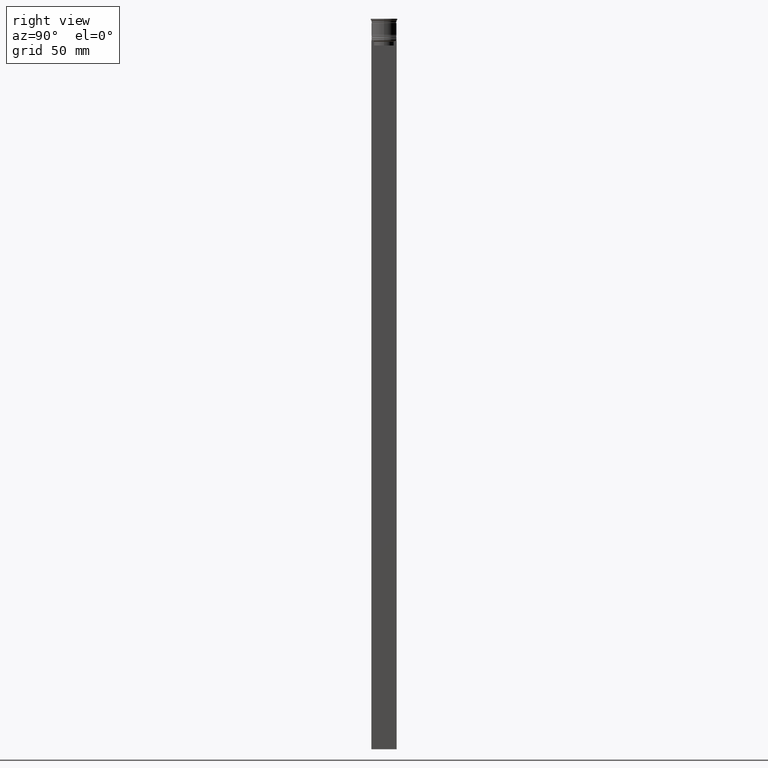
[diagram: clean part render]
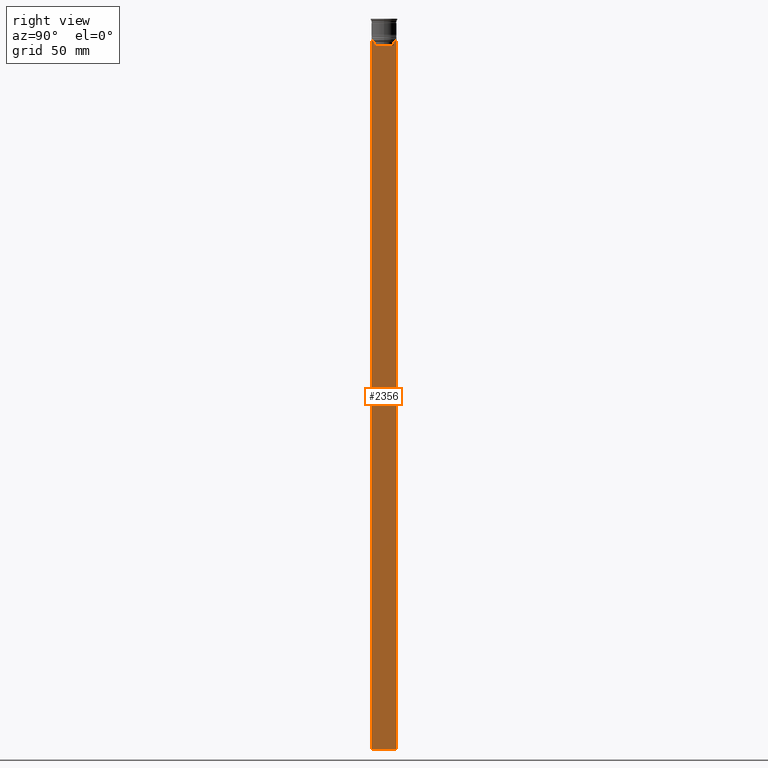
[diagram: same view with one face highlighted and labeled with its STEP entity id]
A machine part, right view. The second image highlights one B-rep face of the part: STEP entity #2356.
In plain terms, the highlighted planar face has unit normal (-1, 0, 0).
Its self-contained STEP definition (entity closure, byte-faithful):
#23 = VERTEX_POINT ( 'NONE', #411 ) ;
#34 = AXIS2_PLACEMENT_3D ( 'NONE', #2056, #960, #2296 ) ;
#59 = ORIENTED_EDGE ( 'NONE', *, *, #1944, .T. ) ;
#100 = VECTOR ( 'NONE', #970, 1000.000000000000000 ) ;
#116 = LINE ( 'NONE', #1660, #1644 ) ;
#119 = LINE ( 'NONE', #1100, #877 ) ;
#135 = CARTESIAN_POINT ( 'NONE',  ( 0.5000000000000001110, 6.714736947114692711, -14.16668390704818847 ) ) ;
#176 = EDGE_CURVE ( 'NONE', #946, #1486, #330, .T. ) ;
#194 = EDGE_CURVE ( 'NONE', #1666, #1225, #1168, .T. ) ;
#198 = CARTESIAN_POINT ( 'NONE',  ( 0.5000000000000001110, 6.380438856379708312, -14.50000000000000000 ) ) ;
#209 = CARTESIAN_POINT ( 'NONE',  ( 0.5000000000000001110, -7.884161337770806632, -14.00000000000000178 ) ) ;
#217 = LINE ( 'NONE', #1942, #100 ) ;
#218 = B_SPLINE_CURVE_WITH_KNOTS ( 'NONE', 3,
 ( #2006, #427, #2346, #1203 ),
 .UNSPECIFIED., .F., .F.,
 ( 4, 4 ),
 ( 0.02996184199614751464, 0.03067452609193705923 ),
 .UNSPECIFIED. ) ;
#219 = VECTOR ( 'NONE', #1090, 1000.000000000000000 ) ;
#318 = CARTESIAN_POINT ( 'NONE',  ( 0.5000000000000001110, 6.881860213634098500, -14.00000000000000178 ) ) ;
#330 = LINE ( 'NONE', #2229, #219 ) ;
#411 = CARTESIAN_POINT ( 'NONE',  ( 0.5000000000000001110, -8.000000000000003553, -14.00000000000000178 ) ) ;
#420 = LINE ( 'NONE', #2115, #1440 ) ;
#427 = CARTESIAN_POINT ( 'NONE',  ( 0.5000000000000001110, -6.547597841511247019, -14.33335192438652150 ) ) ;
#461 = ORIENTED_EDGE ( 'NONE', *, *, #1680, .T. ) ;
#463 = B_SPLINE_CURVE_WITH_KNOTS ( 'NONE', 3,
 ( #1457, #135, #1095, #2077 ),
 .UNSPECIFIED., .F., .F.,
 ( 4, 4 ),
 ( 0.01172465562756038263, 0.01243276816391822651 ),
 .UNSPECIFIED. ) ;
#466 = VECTOR ( 'NONE', #1089, 1000.000000000000000 ) ;
#470 = ORIENTED_EDGE ( 'NONE', *, *, #1019, .T. ) ;
#485 = LINE ( 'NONE', #512, #1074 ) ;
#512 = CARTESIAN_POINT ( 'NONE',  ( 0.5000000000000001110, -8.000000000000003553, 2.031219541881394530 ) ) ;
#584 = ORIENTED_EDGE ( 'NONE', *, *, #194, .T. ) ;
#630 = EDGE_CURVE ( 'NONE', #927, #2104, #463, .T. ) ;
#677 = DIRECTION ( 'NONE',  ( 0.000000000000000000, 0.000000000000000000, -1.000000000000000000 ) ) ;
#678 = ORIENTED_EDGE ( 'NONE', *, *, #630, .T. ) ;
#706 = LINE ( 'NONE', #2105, #1640 ) ;
#852 = VERTEX_POINT ( 'NONE', #2293 ) ;
#869 = LINE ( 'NONE', #2217, #466 ) ;
#877 = VECTOR ( 'NONE', #1474, 1000.000000000000000 ) ;
#927 = VERTEX_POINT ( 'NONE', #318 ) ;
#928 = EDGE_CURVE ( 'NONE', #2104, #2374, #869, .T. ) ;
#946 = VERTEX_POINT ( 'NONE', #2407 ) ;
#960 = DIRECTION ( 'NONE',  ( -1.000000000000000000, 0.000000000000000000, 0.000000000000000000 ) ) ;
#970 = DIRECTION ( 'NONE',  ( 0.000000000000000000, -1.000000000000000000, 0.000000000000000000 ) ) ;
#977 = CARTESIAN_POINT ( 'NONE',  ( 0.5000000000000001110, 7.999999999999996447, -464.0000000000000000 ) ) ;
#1019 = EDGE_CURVE ( 'NONE', #2254, #927, #1441, .T. ) ;
#1074 = VECTOR ( 'NONE', #1267, 1000.000000000000000 ) ;
#1089 = DIRECTION ( 'NONE',  ( 0.000000000000000000, 0.000000000000000000, -1.000000000000000000 ) ) ;
#1090 = DIRECTION ( 'NONE',  ( -0.000000000000000000, -0.000000000000000000, 1.000000000000000000 ) ) ;
#1095 = CARTESIAN_POINT ( 'NONE',  ( 0.5000000000000001110, 6.547597841304911626, -14.33335192459222718 ) ) ;
#1096 = ORIENTED_EDGE ( 'NONE', *, *, #1448, .T. ) ;
#1100 = CARTESIAN_POINT ( 'NONE',  ( 0.5000000000000001110, -8.000000000000003553, -464.0000000000000000 ) ) ;
#1117 = VECTOR ( 'NONE', #1427, 1000.000000000000000 ) ;
#1153 = DIRECTION ( 'NONE',  ( 0.000000000000000000, -1.000000000000000000, 0.000000000000000000 ) ) ;
#1168 = LINE ( 'NONE', #2309, #1916 ) ;
#1203 = CARTESIAN_POINT ( 'NONE',  ( 0.5000000000000001110, -6.881860213634098500, -14.00000000000000178 ) ) ;
#1225 = VERTEX_POINT ( 'NONE', #209 ) ;
#1255 = CARTESIAN_POINT ( 'NONE',  ( 0.5000000000000001110, 7.884161337770806632, -14.00000000000000178 ) ) ;
#1259 = EDGE_LOOP ( 'NONE', ( #470, #678, #2230, #2219, #2110, #2215, #584, #461, #1434, #59, #2098, #1096 ) ) ;
#1267 = DIRECTION ( 'NONE',  ( 0.000000000000000000, 0.000000000000000000, -1.000000000000000000 ) ) ;
#1388 = EDGE_CURVE ( 'NONE', #2374, #946, #217, .T. ) ;
#1427 = DIRECTION ( 'NONE',  ( 0.000000000000000000, -1.000000000000000000, 0.000000000000000000 ) ) ;
#1434 = ORIENTED_EDGE ( 'NONE', *, *, #2260, .T. ) ;
#1440 = VECTOR ( 'NONE', #1153, 1000.000000000000000 ) ;
#1441 = LINE ( 'NONE', #2206, #1117 ) ;
#1448 = EDGE_CURVE ( 'NONE', #1488, #2254, #706, .T. ) ;
#1449 = FACE_OUTER_BOUND ( 'NONE', #1259, .T. ) ;
#1457 = CARTESIAN_POINT ( 'NONE',  ( 0.5000000000000001110, 6.881860213634098500, -14.00000000000000178 ) ) ;
#1467 = DIRECTION ( 'NONE',  ( 0.000000000000000000, -1.000000000000000000, 0.000000000000000000 ) ) ;
#1474 = DIRECTION ( 'NONE',  ( 0.000000000000000000, 1.000000000000000000, 0.000000000000000000 ) ) ;
#1486 = VERTEX_POINT ( 'NONE', #1845 ) ;
#1488 = VERTEX_POINT ( 'NONE', #2446 ) ;
#1640 = VECTOR ( 'NONE', #1467, 1000.000000000000000 ) ;
#1644 = VECTOR ( 'NONE', #677, 1000.000000000000000 ) ;
#1660 = CARTESIAN_POINT ( 'NONE',  ( 0.5000000000000001110, 7.999999999999996447, 2.031219541881394530 ) ) ;
#1666 = VERTEX_POINT ( 'NONE', #1740 ) ;
#1680 = EDGE_CURVE ( 'NONE', #1225, #23, #420, .T. ) ;
#1693 = VERTEX_POINT ( 'NONE', #977 ) ;
#1738 = DIRECTION ( 'NONE',  ( 0.000000000000000000, -1.000000000000000000, 0.000000000000000000 ) ) ;
#1740 = CARTESIAN_POINT ( 'NONE',  ( 0.5000000000000001110, -6.881860213634098500, -14.00000000000000178 ) ) ;
#1845 = CARTESIAN_POINT ( 'NONE',  ( 0.5000000000000001110, -6.380438856379708312, -14.50000000000000000 ) ) ;
#1889 = CARTESIAN_POINT ( 'NONE',  ( 0.5000000000000001110, 6.380438856379708312, -17.00000000000000000 ) ) ;
#1916 = VECTOR ( 'NONE', #1738, 1000.000000000000000 ) ;
#1942 = CARTESIAN_POINT ( 'NONE',  ( 0.5000000000000001110, 6.399999999999999467, -17.00000000000000000 ) ) ;
#1944 = EDGE_CURVE ( 'NONE', #852, #1693, #119, .T. ) ;
#2006 = CARTESIAN_POINT ( 'NONE',  ( 0.5000000000000001110, -6.380438856379708312, -14.50000000000000000 ) ) ;
#2056 = CARTESIAN_POINT ( 'NONE',  ( 0.5000000000000001110, -8.000000000000003553, 2.031219541881394530 ) ) ;
#2077 = CARTESIAN_POINT ( 'NONE',  ( 0.5000000000000001110, 6.380438856379708312, -14.50000000000000000 ) ) ;
#2098 = ORIENTED_EDGE ( 'NONE', *, *, #2355, .F. ) ;
#2104 = VERTEX_POINT ( 'NONE', #198 ) ;
#2105 = CARTESIAN_POINT ( 'NONE',  ( 0.5000000000000001110, -8.000000000000003553, -14.00000000000000178 ) ) ;
#2110 = ORIENTED_EDGE ( 'NONE', *, *, #176, .T. ) ;
#2115 = CARTESIAN_POINT ( 'NONE',  ( 0.5000000000000001110, -8.000000000000003553, -14.00000000000000178 ) ) ;
#2155 = EDGE_CURVE ( 'NONE', #1486, #1666, #218, .T. ) ;
#2206 = CARTESIAN_POINT ( 'NONE',  ( 0.5000000000000001110, -8.000000000000003553, -14.00000000000000178 ) ) ;
#2215 = ORIENTED_EDGE ( 'NONE', *, *, #2155, .T. ) ;
#2217 = CARTESIAN_POINT ( 'NONE',  ( 0.5000000000000001110, 6.380438856379708312, 0.000000000000000000 ) ) ;
#2219 = ORIENTED_EDGE ( 'NONE', *, *, #1388, .T. ) ;
#2229 = CARTESIAN_POINT ( 'NONE',  ( 0.5000000000000001110, -6.380438856379708312, 0.000000000000000000 ) ) ;
#2230 = ORIENTED_EDGE ( 'NONE', *, *, #928, .T. ) ;
#2254 = VERTEX_POINT ( 'NONE', #1255 ) ;
#2260 = EDGE_CURVE ( 'NONE', #23, #852, #485, .T. ) ;
#2293 = CARTESIAN_POINT ( 'NONE',  ( 0.5000000000000001110, -8.000000000000003553, -464.0000000000000000 ) ) ;
#2296 = DIRECTION ( 'NONE',  ( 0.000000000000000000, 0.000000000000000000, 1.000000000000000000 ) ) ;
#2309 = CARTESIAN_POINT ( 'NONE',  ( 0.5000000000000001110, -8.000000000000003553, -14.00000000000000178 ) ) ;
#2346 = CARTESIAN_POINT ( 'NONE',  ( 0.5000000000000001110, -6.714736947305993908, -14.16668390685738821 ) ) ;
#2355 = EDGE_CURVE ( 'NONE', #1488, #1693, #116, .T. ) ;
#2356 = ADVANCED_FACE ( 'NONE', ( #1449 ), #2423, .F. ) ;
#2374 = VERTEX_POINT ( 'NONE', #1889 ) ;
#2407 = CARTESIAN_POINT ( 'NONE',  ( 0.5000000000000001110, -6.380438856379708312, -17.00000000000000000 ) ) ;
#2423 = PLANE ( 'NONE',  #34 ) ;
#2446 = CARTESIAN_POINT ( 'NONE',  ( 0.5000000000000001110, 7.999999999999996447, -14.00000000000000178 ) ) ;